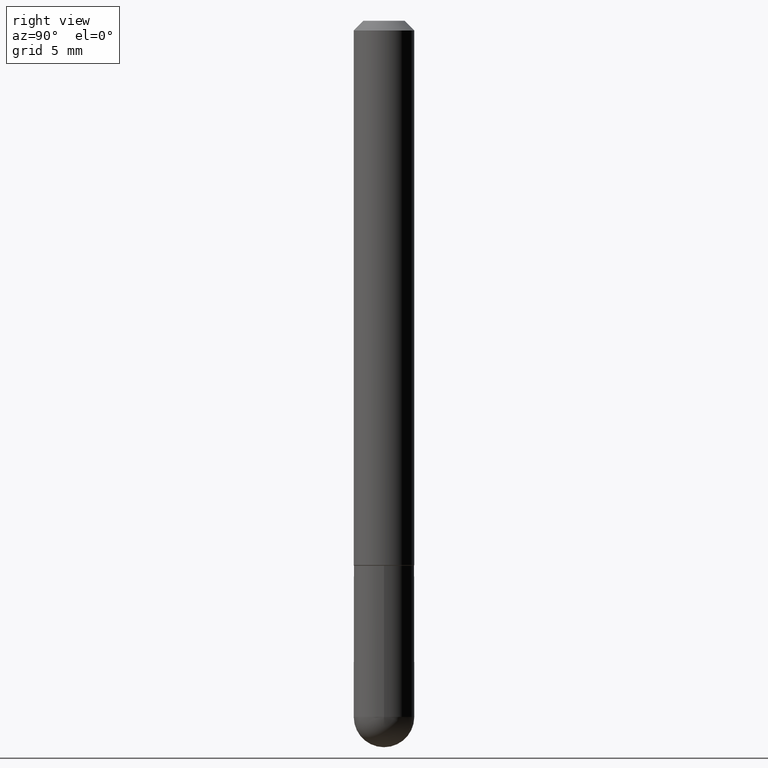
[diagram: clean part render]
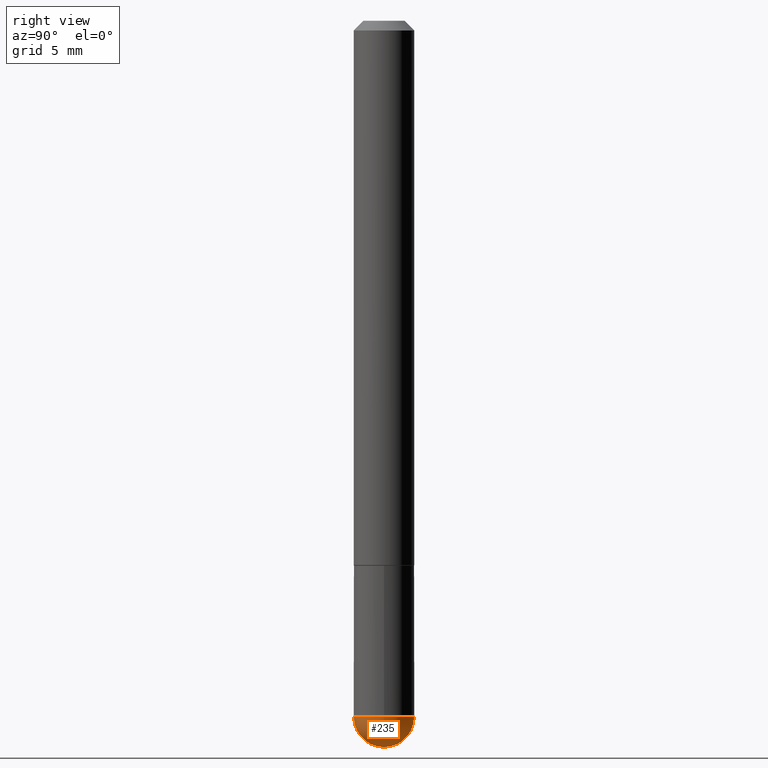
[diagram: same view with one face highlighted and labeled with its STEP entity id]
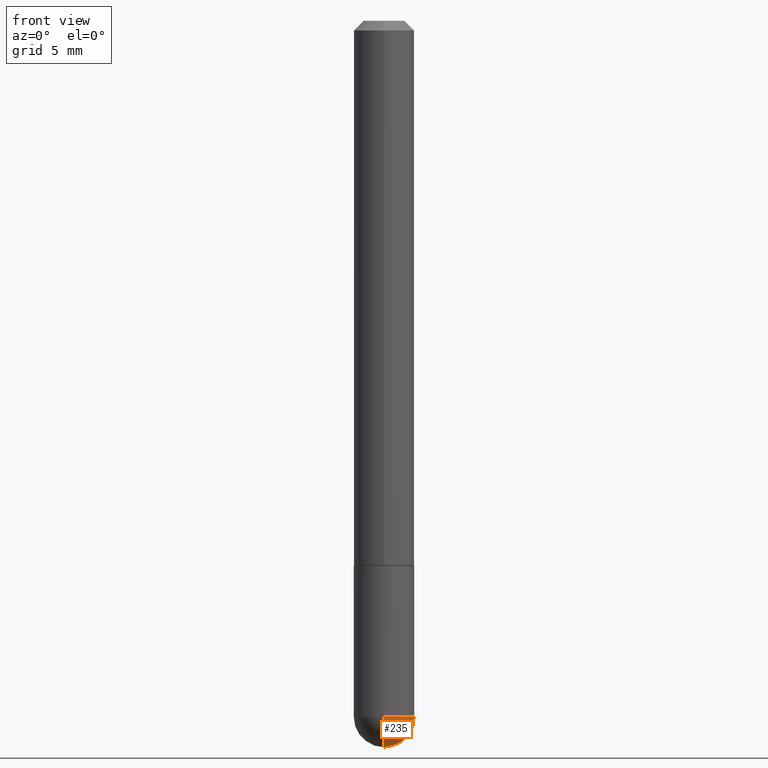
[diagram: same view with one face highlighted and labeled with its STEP entity id]
A machine part, right view. The second image highlights one B-rep face of the part: STEP entity #235.
A second angle (front view) of the same face is appended — the face is thin or edge-on in the first view.
In plain terms, the highlighted spherical surface has radius 1.5875 mm.
Its self-contained STEP definition (entity closure, byte-faithful):
#1 = AXIS2_PLACEMENT_3D ( 'NONE', #296, #231, #124 ) ;
#37 = CARTESIAN_POINT ( 'NONE',  ( 0.06249999999999995143, -4.909895632748172453E-15, -1.437500000000000222 ) ) ;
#45 = ORIENTED_EDGE ( 'NONE', *, *, #327, .F. ) ;
#50 = CIRCLE ( 'NONE', #201, 0.06250000000000018041 ) ;
#57 = AXIS2_PLACEMENT_3D ( 'NONE', #305, #199, #330 ) ;
#67 = FACE_OUTER_BOUND ( 'NONE', #241, .T. ) ;
#79 = VERTEX_POINT ( 'NONE', #283 ) ;
#90 = DIRECTION ( 'NONE',  ( 1.000000000000000000, -6.982962677686265922E-15, 4.883557194083112340E-29 ) ) ;
#91 = AXIS2_PLACEMENT_3D ( 'NONE', #249, #115, #375 ) ;
#103 = CARTESIAN_POINT ( 'NONE',  ( -4.440892098500294840E-16, -0.06250000000000532907, -1.437500000000000000 ) ) ;
#115 = DIRECTION ( 'NONE',  ( -2.445468806185136597E-29, 3.491481338843145583E-15, 1.000000000000000000 ) ) ;
#124 = DIRECTION ( 'NONE',  ( 1.000000000000000000, -6.982962677686268288E-15, 0.000000000000000000 ) ) ;
#130 = CARTESIAN_POINT ( 'NONE',  ( 3.339755826017505008E-29, -5.707577355157432999E-15, -1.500000000000000222 ) ) ;
#158 = EDGE_CURVE ( 'NONE', #228, #79, #178, .T. ) ;
#161 = SPHERICAL_SURFACE ( 'NONE', #380, 0.06250000000000018041 ) ;
#178 = CIRCLE ( 'NONE', #91, 0.06249999999999995143 ) ;
#190 = DIRECTION ( 'NONE',  ( -1.000000000000000000, 6.982962677686265922E-15, -4.883557194083112340E-29 ) ) ;
#192 = CARTESIAN_POINT ( 'NONE',  ( 3.184241630977247611E-29, -5.493186792727071849E-15, -1.437500000000000000 ) ) ;
#193 = ORIENTED_EDGE ( 'NONE', *, *, #158, .F. ) ;
#199 = DIRECTION ( 'NONE',  ( -1.000000000000000000, 7.105427357601001070E-15, -4.926315508542082329E-29 ) ) ;
#201 = AXIS2_PLACEMENT_3D ( 'NONE', #297, #90, #385 ) ;
#228 = VERTEX_POINT ( 'NONE', #37 ) ;
#231 = DIRECTION ( 'NONE',  ( -2.445468806185136597E-29, 3.491481338843145583E-15, 1.000000000000000000 ) ) ;
#235 = ADVANCED_FACE ( 'NONE', ( #67 ), #161, .T. ) ;
#241 = EDGE_LOOP ( 'NONE', ( #244, #311, #193, #45 ) ) ;
#242 = EDGE_CURVE ( 'NONE', #340, #79, #50, .T. ) ;
#244 = ORIENTED_EDGE ( 'NONE', *, *, #357, .F. ) ;
#249 = CARTESIAN_POINT ( 'NONE',  ( 3.515361408891134418E-29, -5.019004424587023131E-15, -1.437500000000000222 ) ) ;
#283 = CARTESIAN_POINT ( 'NONE',  ( 4.364351673554256397E-16, 0.06249999999999480971, -1.437500000000000444 ) ) ;
#294 = DIRECTION ( 'NONE',  ( 6.982962677686265922E-15, 1.000000000000000000, -4.370956789862807739E-15 ) ) ;
#296 = CARTESIAN_POINT ( 'NONE',  ( 3.515361408891134418E-29, -5.019004424587023131E-15, -1.437500000000000222 ) ) ;
#297 = CARTESIAN_POINT ( 'NONE',  ( 3.184241630977247611E-29, -5.493186792727071849E-15, -1.437500000000000000 ) ) ;
#303 = CIRCLE ( 'NONE', #57, 0.06250000000000018041 ) ;
#305 = CARTESIAN_POINT ( 'NONE',  ( 3.184241630977247611E-29, -5.493186792727071849E-15, -1.437500000000000000 ) ) ;
#311 = ORIENTED_EDGE ( 'NONE', *, *, #242, .T. ) ;
#327 = EDGE_CURVE ( 'NONE', #372, #228, #365, .T. ) ;
#330 = DIRECTION ( 'NONE',  ( -7.105427357601001859E-15, -1.000000000000000000, 0.000000000000000000 ) ) ;
#340 = VERTEX_POINT ( 'NONE', #130 ) ;
#357 = EDGE_CURVE ( 'NONE', #340, #372, #303, .T. ) ;
#365 = CIRCLE ( 'NONE', #1, 0.06249999999999995143 ) ;
#372 = VERTEX_POINT ( 'NONE', #103 ) ;
#375 = DIRECTION ( 'NONE',  ( 1.000000000000000000, -6.982962677686268288E-15, 0.000000000000000000 ) ) ;
#380 = AXIS2_PLACEMENT_3D ( 'NONE', #192, #190, #294 ) ;
#385 = DIRECTION ( 'NONE',  ( 6.982962677686266711E-15, 1.000000000000000000, 0.000000000000000000 ) ) ;